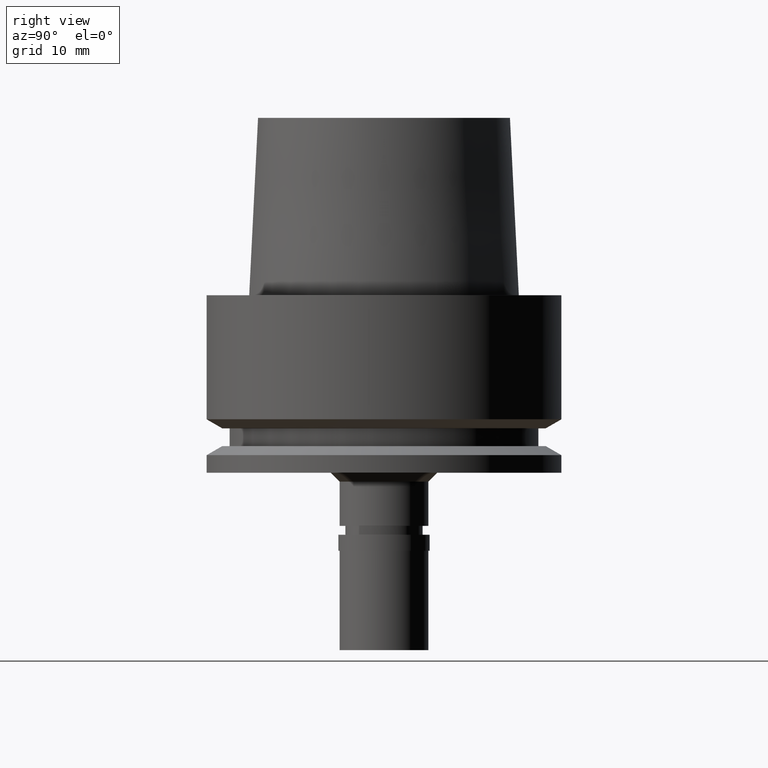
[diagram: clean part render]
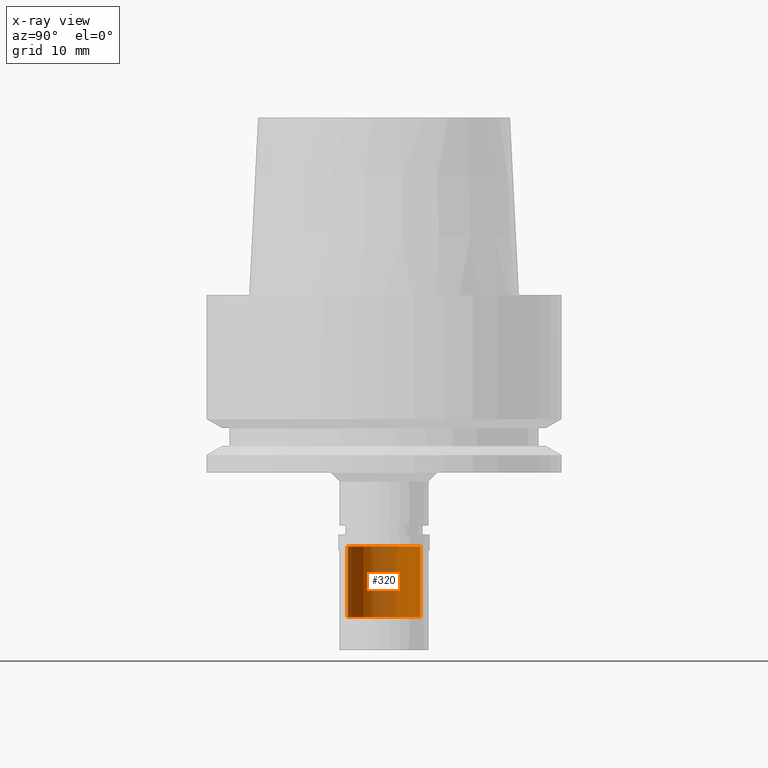
[diagram: x-ray — body ghosted, one internal face saturated and labeled with its STEP entity id]
A machine part, right view, then the same camera in x-ray: the body is ghosted and one INTERNAL B-rep face — a face not visible from any outside direction — is saturated and labeled: STEP entity #320.
In plain terms, the highlighted cylindrical surface (edge-blend (fillet) strip) has radius 4.1 mm, axis along (0, 0, 1).
Its self-contained STEP definition (entity closure, byte-faithful):
#100 = EDGE_CURVE ( 'NONE', #1002, #1176, #2206, .T. ) ;
#170 = VERTEX_POINT ( 'NONE', #176 ) ;
#176 = CARTESIAN_POINT ( 'NONE',  ( 0.0000000000000000000, 4.100000000000000533, -36.29999999999999716 ) ) ;
#201 = ORIENTED_EDGE ( 'NONE', *, *, #100, .F. ) ;
#300 = FACE_OUTER_BOUND ( 'NONE', #2380, .T. ) ;
#320 = ADVANCED_FACE ( 'NONE', ( #300 ), #1964, .T. ) ;
#328 = CARTESIAN_POINT ( 'NONE',  ( 0.0000000000000000000, 0.0000000000000000000, -28.29999999999999716 ) ) ;
#338 = CARTESIAN_POINT ( 'NONE',  ( 0.0000000000000000000, -4.100000000000000533, -28.29999999999999716 ) ) ;
#467 = VERTEX_POINT ( 'NONE', #1387 ) ;
#505 = EDGE_CURVE ( 'NONE', #1002, #467, #742, .T. ) ;
#509 = ORIENTED_EDGE ( 'NONE', *, *, #1071, .T. ) ;
#691 = CARTESIAN_POINT ( 'NONE',  ( 0.0000000000000000000, -4.100000000000000533, -36.29999999999999716 ) ) ;
#742 = CIRCLE ( 'NONE', #2531, 4.100000000000000533 ) ;
#745 = AXIS2_PLACEMENT_3D ( 'NONE', #2511, #1070, #1514 ) ;
#909 = ORIENTED_EDGE ( 'NONE', *, *, #2536, .T. ) ;
#915 = VECTOR ( 'NONE', #2250, 1000.000000000000000 ) ;
#1002 = VERTEX_POINT ( 'NONE', #1970 ) ;
#1070 = DIRECTION ( 'NONE',  ( 0.0000000000000000000, 0.0000000000000000000, 1.000000000000000000 ) ) ;
#1071 = EDGE_CURVE ( 'NONE', #170, #1176, #2576, .T. ) ;
#1122 = DIRECTION ( 'NONE',  ( 0.0000000000000000000, 0.0000000000000000000, 1.000000000000000000 ) ) ;
#1161 = ORIENTED_EDGE ( 'NONE', *, *, #505, .T. ) ;
#1173 = DIRECTION ( 'NONE',  ( 0.0000000000000000000, 0.0000000000000000000, -1.000000000000000000 ) ) ;
#1176 = VERTEX_POINT ( 'NONE', #691 ) ;
#1233 = LINE ( 'NONE', #2078, #2324 ) ;
#1311 = AXIS2_PLACEMENT_3D ( 'NONE', #1321, #1122, #1548 ) ;
#1321 = CARTESIAN_POINT ( 'NONE',  ( 0.0000000000000000000, 0.0000000000000000000, -39.11499999999999488 ) ) ;
#1387 = CARTESIAN_POINT ( 'NONE',  ( 0.0000000000000000000, 4.100000000000000533, -28.29999999999999716 ) ) ;
#1514 = DIRECTION ( 'NONE',  ( 0.0000000000000000000, 1.000000000000000000, 0.0000000000000000000 ) ) ;
#1548 = DIRECTION ( 'NONE',  ( 0.0000000000000000000, 1.000000000000000000, 0.0000000000000000000 ) ) ;
#1964 = CYLINDRICAL_SURFACE ( 'NONE', #1311, 4.100000000000000533 ) ;
#1970 = CARTESIAN_POINT ( 'NONE',  ( 0.0000000000000000000, -4.100000000000000533, -28.29999999999999716 ) ) ;
#2001 = DIRECTION ( 'NONE',  ( 0.0000000000000000000, -1.000000000000000000, 0.0000000000000000000 ) ) ;
#2062 = DIRECTION ( 'NONE',  ( 0.0000000000000000000, 0.0000000000000000000, -1.000000000000000000 ) ) ;
#2078 = CARTESIAN_POINT ( 'NONE',  ( 0.0000000000000000000, 4.100000000000000533, -28.29999999999999716 ) ) ;
#2206 = LINE ( 'NONE', #338, #915 ) ;
#2250 = DIRECTION ( 'NONE',  ( 0.0000000000000000000, 0.0000000000000000000, -1.000000000000000000 ) ) ;
#2324 = VECTOR ( 'NONE', #2062, 1000.000000000000000 ) ;
#2380 = EDGE_LOOP ( 'NONE', ( #509, #201, #1161, #909 ) ) ;
#2511 = CARTESIAN_POINT ( 'NONE',  ( 0.0000000000000000000, 0.0000000000000000000, -36.29999999999999716 ) ) ;
#2531 = AXIS2_PLACEMENT_3D ( 'NONE', #328, #1173, #2001 ) ;
#2536 = EDGE_CURVE ( 'NONE', #467, #170, #1233, .T. ) ;
#2576 = CIRCLE ( 'NONE', #745, 4.100000000000000533 ) ;